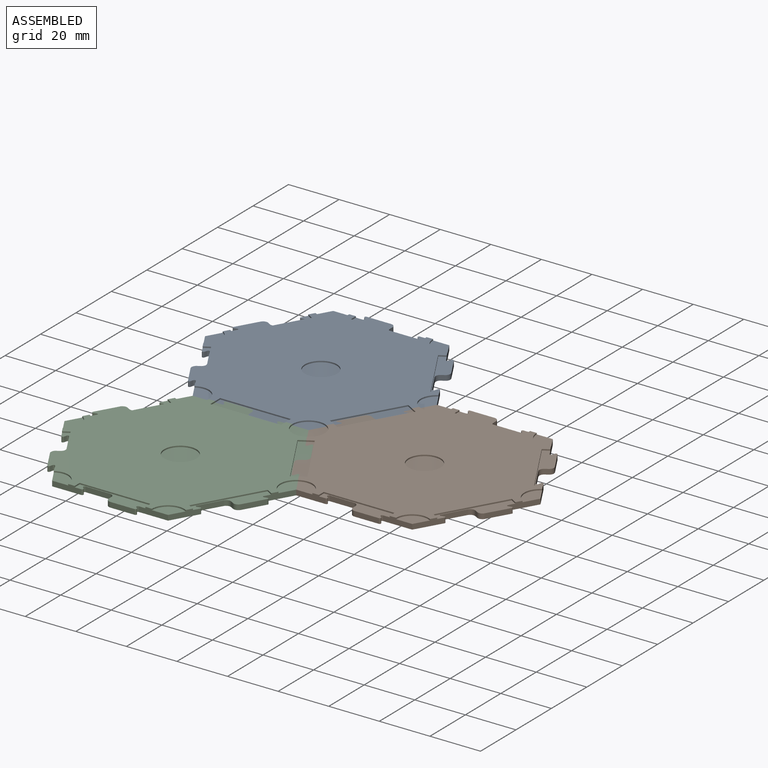
[diagram: assembled view]
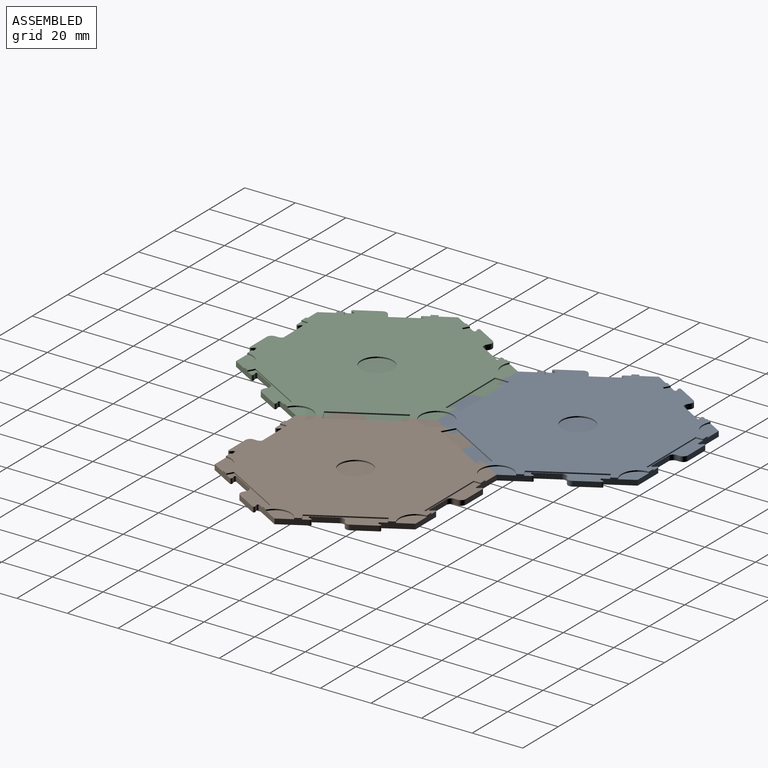
[diagram: assembled view, second angle]
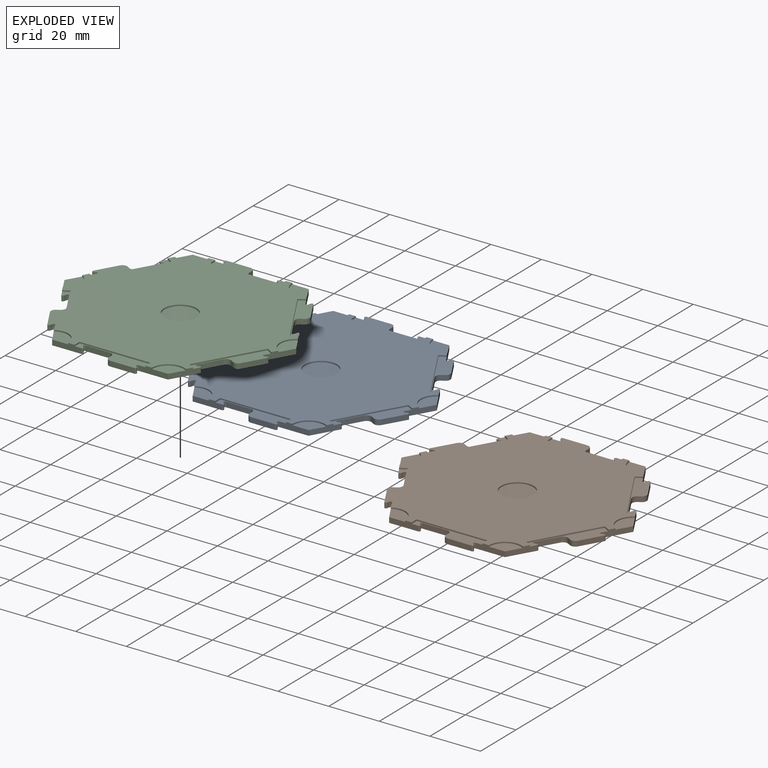
[diagram: exploded view]
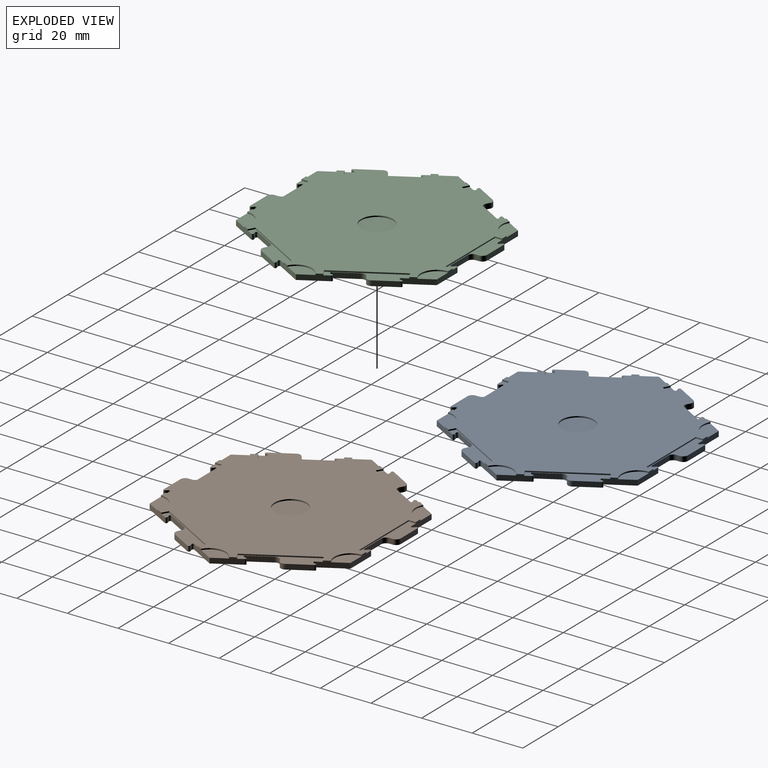
[diagram: exploded view, second angle]
ASSEMBLY  parts=3 mates=4
PART A: 118 faces, bbox 91.7x84.5x2.5 mm
  f0: plane 2.03x1.27mm, normal (-1,0,0), area 2.6mm2, adj f38,f44,f79,f85
  f1: plane 9.57x2.03mm, normal (0,-1,0), area 19.4mm2, adj f38,f39,f79,f85
  f2: plane 2.03x0.81mm, normal (0.71,0.71,0), area 2.3mm2, adj f39,f40,f79,f85
  f3: plane 11.53x2.54mm, normal (0,-1,0), area 24.7mm2, adj f9,f42,f45,f79,f84,f85,f114,f115
  f4: plane 2.03x0.81mm, normal (0.71,0.71,0), area 2.3mm2, adj f42,f43,f79,f85
  f5: plane 9.57x2.03mm, normal (0,-1,0), area 19.4mm2, adj f43,f44,f79,f85
  f6: plane 2.03x1.1mm, normal (-0.5,0.87,0), area 2.6mm2, adj f46,f51,f79,f105
  f7: plane 8.29x4.78mm, normal (-0.87,-0.5,0), area 19.4mm2, adj f46,f47,f79,f105
  f8: plane 2.03x1.1mm, normal (0.97,-0.26,0), area 2.3mm2, adj f47,f48,f79,f105
  f9: plane 9.98x5.76mm, normal (-0.87,-0.5,0), area 24.7mm2, adj f3,f45,f48,f79,f102,f105,f114,f115
  f10: plane 9.98x5.76mm, normal (-0.87,-0.5,0), area 24.7mm2, adj f45,f49,f55,f79,f104,f105,f112,f113
  f11: plane 2.03x1.1mm, normal (0.97,-0.26,0), area 2.3mm2, adj f49,f50,f79,f105
  f12: plane 8.29x4.78mm, normal (-0.87,-0.5,0), area 19.4mm2, adj f50,f51,f79,f105
  f13: plane 2.03x1.1mm, normal (0.5,0.87,0), area 2.6mm2, adj f52,f58,f79,f101
  f14: plane 8.29x4.78mm, normal (-0.87,0.5,0), area 19.4mm2, adj f52,f53,f79,f101
  f15: plane 2.03x1.1mm, normal (0.26,-0.97,0), area 2.3mm2, adj f53,f54,f79,f101
  f16: plane 9.98x5.76mm, normal (-0.87,0.5,0), area 24.7mm2, adj f22,f45,f56,f79,f100,f101,f110,f111
  f17: plane 2.03x1.1mm, normal (0.26,-0.97,0), area 2.3mm2, adj f56,f57,f79,f101
  f18: plane 8.29x4.78mm, normal (-0.87,0.5,0), area 19.4mm2, adj f57,f58,f79,f101
  f19: plane 2.03x1.27mm, normal (1,0,0), area 2.6mm2, adj f59,f64,f79,f97
  f20: plane 9.57x2.03mm, normal (0,1,0), area 19.4mm2, adj f59,f60,f79,f97
  f21: plane 2.03x0.81mm, normal (-0.71,-0.71,0), area 2.3mm2, adj f60,f61,f79,f97
  f22: plane 11.53x2.54mm, normal (0,1,0), area 24.7mm2, adj f16,f45,f61,f79,f94,f97,f110,f111
  f23: plane 11.53x2.54mm, normal (0,1,0), area 24.7mm2, adj f29,f45,f62,f79,f96,f97,f108,f109
  f24: plane 2.03x0.81mm, normal (-0.71,-0.71,0), area 2.3mm2, adj f62,f63,f79,f97
  f25: plane 9.57x2.03mm, normal (0,1,0), area 19.4mm2, adj f63,f64,f79,f97
  f26: plane 2.03x1.1mm, normal (0.5,-0.87,0), area 2.6mm2, adj f65,f70,f79,f93
  f27: plane 8.29x4.78mm, normal (0.87,0.5,0), area 19.4mm2, adj f65,f66,f79,f93
  f28: plane 2.03x1.1mm, normal (-0.97,0.26,0), area 2.3mm2, adj f66,f67,f79,f93
  f29: plane 9.98x5.76mm, normal (0.87,0.5,0), area 24.7mm2, adj f23,f45,f67,f79,f90,f93,f108,f109
  f30: plane 9.98x5.76mm, normal (0.87,0.5,0), area 24.7mm2, adj f45,f68,f74,f79,f92,f93,f106,f107
  f31: plane 2.03x1.1mm, normal (-0.97,0.26,0), area 2.3mm2, adj f68,f69,f79,f93
  f32: plane 8.29x4.78mm, normal (0.87,0.5,0), area 19.4mm2, adj f69,f70,f79,f93
  f33: plane 2.03x1.1mm, normal (-0.5,-0.87,0), area 2.6mm2, adj f71,f78,f79,f89
  f34: plane 8.29x4.78mm, normal (0.87,-0.5,0), area 19.4mm2, adj f71,f72,f79,f89
  f35: plane 2.03x1.1mm, normal (-0.26,0.97,0), area 2.3mm2, adj f72,f73,f79,f89
  f36: plane 2.03x1.1mm, normal (-0.26,0.97,0), area 2.3mm2, adj f76,f77,f79,f89
  f37: plane 8.29x4.78mm, normal (0.87,-0.5,0), area 19.4mm2, adj f77,f78,f79,f89
  f38: cylinder r=1.91mm len=2.03mm, axis (0,0,-1), area 6.1mm2, adj f0,f1,f79,f85
  f39: cylinder r=0.51mm len=2.03mm, axis (0,0,-1), area 2.4mm2, adj f1,f2,f79,f85
  f40: cylinder r=0.51mm len=2.03mm, axis (0,0,-1), area 2.4mm2, adj f2,f41,f79,f85
  f41: plane 11.53x2.54mm, normal (0,-1,0), area 24.7mm2, adj f40,f45,f75,f79,f80,f81,f82,f85
  f42: cylinder r=0.51mm len=2.03mm, axis (0,0,-1), area 2.4mm2, adj f3,f4,f79,f85
  f43: cylinder r=0.51mm len=2.03mm, axis (0,0,-1), area 2.4mm2, adj f4,f5,f79,f85
  f44: cylinder r=1.91mm len=2.03mm, axis (0,0,-1), area 6.1mm2, adj f0,f5,f79,f85
  f45: plane 85.3x79.38mm, normal (0,0,1), area 4607.9mm2, adj f3,f9,f10,f16,f22,f23,f29,f30
  f46: cylinder r=1.91mm len=2.6mm, axis (0,0,-1), area 6.1mm2, adj f6,f7,f79,f105
  f47: cylinder r=0.51mm len=2.03mm, axis (0,0,-1), area 2.4mm2, adj f7,f8,f79,f105
  f48: cylinder r=0.51mm len=2.03mm, axis (0,0,-1), area 2.4mm2, adj f8,f9,f79,f105
  f49: cylinder r=0.51mm len=2.03mm, axis (0,0,-1), area 2.4mm2, adj f10,f11,f79,f105
  f50: cylinder r=0.51mm len=2.03mm, axis (0,0,-1), area 2.4mm2, adj f11,f12,f79,f105
  f51: cylinder r=1.91mm len=2.6mm, axis (0,0,-1), area 6.1mm2, adj f6,f12,f79,f105
  f52: cylinder r=1.91mm len=2.6mm, axis (0,0,-1), area 6.1mm2, adj f13,f14,f79,f101
  f53: cylinder r=0.51mm len=2.03mm, axis (0,0,-1), area 2.4mm2, adj f14,f15,f79,f101
  f54: cylinder r=0.51mm len=2.03mm, axis (0,0,-1), area 2.4mm2, adj f15,f55,f79,f101
  f55: plane 9.98x5.76mm, normal (-0.87,0.5,0), area 24.7mm2, adj f10,f45,f54,f79,f98,f101,f112,f113
  f56: cylinder r=0.51mm len=2.03mm, axis (0,0,-1), area 2.4mm2, adj f16,f17,f79,f101
  f57: cylinder r=0.51mm len=2.03mm, axis (0,0,-1), area 2.4mm2, adj f17,f18,f79,f101
  f58: cylinder r=1.91mm len=2.6mm, axis (0,0,-1), area 6.1mm2, adj f13,f18,f79,f101
  f59: cylinder r=1.91mm len=2.03mm, axis (0,0,-1), area 6.1mm2, adj f19,f20,f79,f97
  f60: cylinder r=0.51mm len=2.03mm, axis (0,0,-1), area 2.4mm2, adj f20,f21,f79,f97
  f61: cylinder r=0.51mm len=2.03mm, axis (0,0,-1), area 2.4mm2, adj f21,f22,f79,f97
  f62: cylinder r=0.51mm len=2.03mm, axis (0,0,-1), area 2.4mm2, adj f23,f24,f79,f97
  f63: cylinder r=0.51mm len=2.03mm, axis (0,0,-1), area 2.4mm2, adj f24,f25,f79,f97
  f64: cylinder r=1.91mm len=2.03mm, axis (0,0,-1), area 6.1mm2, adj f19,f25,f79,f97
  f65: cylinder r=1.91mm len=2.6mm, axis (0,0,-1), area 6.1mm2, adj f26,f27,f79,f93
  f66: cylinder r=0.51mm len=2.03mm, axis (0,0,-1), area 2.4mm2, adj f27,f28,f79,f93
  f67: cylinder r=0.51mm len=2.03mm, axis (0,0,-1), area 2.4mm2, adj f28,f29,f79,f93
  f68: cylinder r=0.51mm len=2.03mm, axis (0,0,-1), area 2.4mm2, adj f30,f31,f79,f93
  f69: cylinder r=0.51mm len=2.03mm, axis (0,0,-1), area 2.4mm2, adj f31,f32,f79,f93
  f70: cylinder r=1.91mm len=2.6mm, axis (0,0,-1), area 6.1mm2, adj f26,f32,f79,f93
  f71: cylinder r=1.91mm len=2.6mm, axis (0,0,-1), area 6.1mm2, adj f33,f34,f79,f89
  f72: cylinder r=0.51mm len=2.03mm, axis (0,0,-1), area 2.4mm2, adj f34,f35,f79,f89
  f73: cylinder r=0.51mm len=2.03mm, axis (0,0,-1), area 2.4mm2, adj f35,f74,f79,f89
  f74: plane 9.98x5.76mm, normal (0.87,-0.5,0), area 24.7mm2, adj f30,f45,f73,f79,f86,f89,f106,f107
  f75: plane 9.98x5.76mm, normal (0.87,-0.5,0), area 24.7mm2, adj f41,f45,f76,f79,f80,f81,f88,f89
  f76: cylinder r=0.51mm len=2.03mm, axis (0,0,-1), area 2.4mm2, adj f36,f75,f79,f89
  f77: cylinder r=0.51mm len=2.03mm, axis (0,0,-1), area 2.4mm2, adj f36,f37,f79,f89
  f78: cylinder r=1.91mm len=2.6mm, axis (0,0,-1), area 6.1mm2, adj f33,f37,f79,f89
  f79: plane 91.65x84.46mm, normal (0,0,-1), area 5456.3mm2, adj f0,f1,f2,f3,f4,f5,f6,f7
  f80: cylinder r=6.35mm len=9.53mm, axis (0,0,1), area 6.8mm2, adj f41,f45,f75,f81
  f81: plane 9.53x6.35mm, normal (0,0,1), area 42.2mm2, adj f41,f75,f80
  f82: plane 2.79x0.51mm, normal (-1,0,0), area 1.4mm2, adj f41,f45,f83,f85
  f83: plane 27.94x0.51mm, normal (0,-1,0), area 14.2mm2, adj f45,f82,f84,f85
  f84: plane 2.79x0.51mm, normal (1,0,0), area 1.4mm2, adj f3,f45,f83,f85
  f85: plane 27.94x5.33mm, normal (0,0,1), area 78.1mm2, adj f0,f1,f2,f3,f4,f5,f38,f39
  f86: plane 2.42x1.4mm, normal (-0.5,-0.87,0), area 1.4mm2, adj f45,f74,f87,f89
  f87: plane 24.2x13.97mm, normal (0.87,-0.5,0), area 14.2mm2, adj f45,f86,f88,f89
  f88: plane 2.42x1.4mm, normal (0.5,0.87,0), area 1.4mm2, adj f45,f75,f87,f89
  f89: plane 25.59x17.41mm, normal (0,0,1), area 78.1mm2, adj f33,f34,f35,f36,f37,f71,f72,f73
  f90: plane 2.42x1.4mm, normal (0.5,-0.87,0), area 1.4mm2, adj f29,f45,f91,f93
  f91: plane 24.2x13.97mm, normal (0.87,0.5,0), area 14.2mm2, adj f45,f90,f92,f93
  f92: plane 2.42x1.4mm, normal (-0.5,0.87,0), area 1.4mm2, adj f30,f45,f91,f93
  f93: plane 25.59x16.39mm, normal (0,0,1), area 78.1mm2, adj f26,f27,f28,f29,f30,f31,f32,f65
  f94: plane 2.79x0.51mm, normal (1,0,0), area 1.4mm2, adj f22,f45,f95,f97
  f95: plane 27.94x0.51mm, normal (0,1,0), area 14.2mm2, adj f45,f94,f96,f97
  f96: plane 2.79x0.51mm, normal (-1,0,0), area 1.4mm2, adj f23,f45,f95,f97
  f97: plane 27.94x5.33mm, normal (0,0,1), area 78.1mm2, adj f19,f20,f21,f22,f23,f24,f25,f59
  f98: plane 2.42x1.4mm, normal (0.5,0.87,0), area 1.4mm2, adj f45,f55,f99,f101
  f99: plane 24.2x13.97mm, normal (-0.87,0.5,0), area 14.2mm2, adj f45,f98,f100,f101
  f100: plane 2.42x1.4mm, normal (-0.5,-0.87,0), area 1.4mm2, adj f16,f45,f99,f101
  f101: plane 25.59x17.41mm, normal (0,0,1), area 78.1mm2, adj f13,f14,f15,f16,f17,f18,f52,f53
  f102: plane 2.42x1.4mm, normal (-0.5,0.87,0), area 1.4mm2, adj f9,f45,f103,f105
  f103: plane 24.2x13.97mm, normal (-0.87,-0.5,0), area 14.2mm2, adj f45,f102,f104,f105
  f104: plane 2.42x1.4mm, normal (0.5,-0.87,0), area 1.4mm2, adj f10,f45,f103,f105
  f105: plane 25.59x16.39mm, normal (0,0,1), area 78.1mm2, adj f6,f7,f8,f9,f10,f11,f12,f46
  f106: cylinder r=6.35mm len=11mm, axis (0,0,1), area 6.8mm2, adj f30,f45,f74,f107
  f107: plane 11x6.35mm, normal (0,0,1), area 42.2mm2, adj f30,f74,f106
  f108: cylinder r=6.35mm len=9.53mm, axis (0,0,1), area 6.8mm2, adj f23,f29,f45,f109
  f109: plane 9.53x6.35mm, normal (0,0,1), area 42.2mm2, adj f23,f29,f108
  f110: cylinder r=6.35mm len=9.53mm, axis (0,0,1), area 6.8mm2, adj f16,f22,f45,f111
  f111: plane 9.53x6.35mm, normal (0,0,1), area 42.2mm2, adj f16,f22,f110
  f112: cylinder r=6.35mm len=11mm, axis (0,0,1), area 6.8mm2, adj f10,f45,f55,f113
  f113: plane 11x6.35mm, normal (0,0,1), area 42.2mm2, adj f10,f55,f112
  f114: cylinder r=6.35mm len=9.53mm, axis (0,0,1), area 6.8mm2, adj f3,f9,f45,f115
  f115: plane 9.53x6.35mm, normal (0,0,1), area 42.2mm2, adj f3,f9,f114
  f116: cylinder r=6.35mm len=12.7mm, axis (0,0,1), area 20.3mm2, adj f45,f117
  f117: plane 12.7x12.7mm, normal (0,0,1), area 126.7mm2, adj f116
PART B: same geometry as A
PART C: same geometry as A
PLACE A t=(-22.9,39.68,-2.03)mm
PLACE B t=(45.84,-0.01,-2.03)mm
PLACE C t=(-22.9,-39.69,-2.03)mm
MATE planar B.f116 <-> C.f116  axis (0,0,1) through (45.84,-0.01,0.51)mm
MATE planar A.f116 <-> B.f116  axis (0,0,1) through (-22.9,39.68,0.51)mm
MATE slider B.f112 <-> A.f80  axis (0,0,1) through (0.01,-0.01,0)mm
MATE slider C.f108 <-> A.f80  axis (0,0,1) through (0.01,-0.01,0)mm
